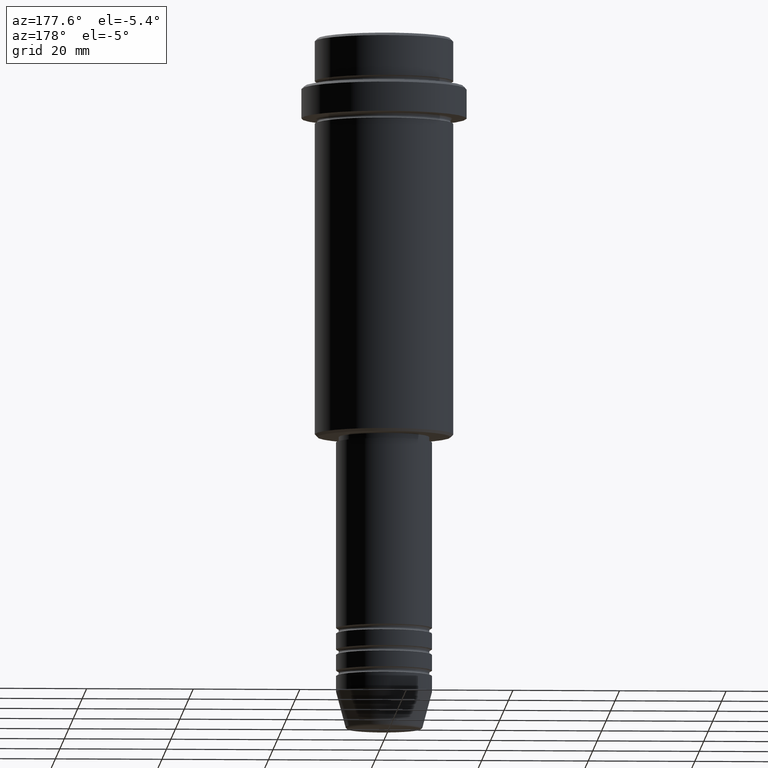
[diagram: clean part render]
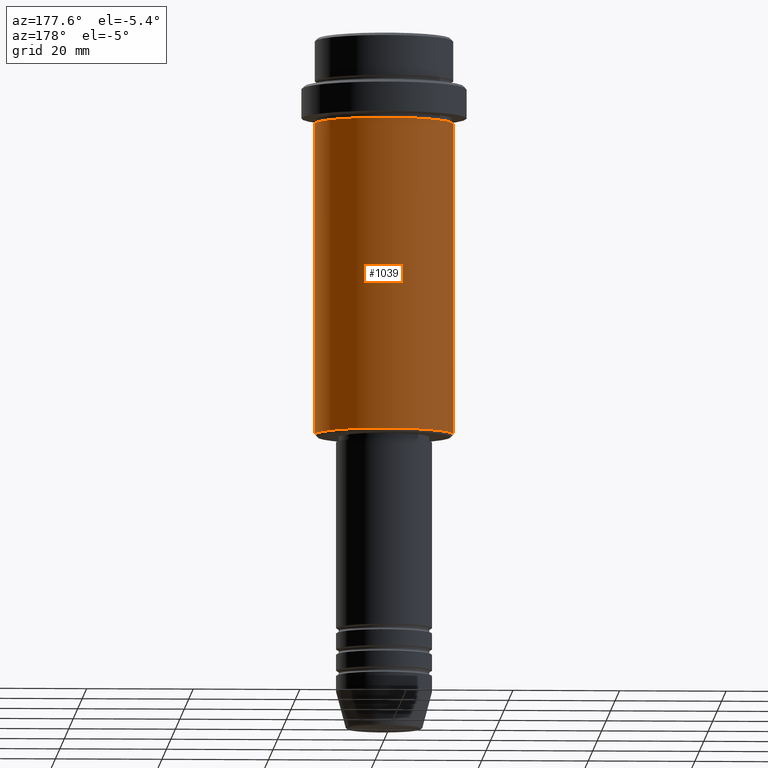
[diagram: same view with one face highlighted and labeled with its STEP entity id]
A machine part, auxiliary view. The second image highlights one B-rep face of the part: STEP entity #1039.
In plain terms, the highlighted cylindrical surface (partial cylindrical patch) has radius 13 mm, axis along (-0, -0, 1).
Its self-contained STEP definition (entity closure, byte-faithful):
#90 = CARTESIAN_POINT ( 'NONE',  ( 13.00000000000000000, 0.000000000000000000, 0.000000000000000000 ) ) ;
#123 = CARTESIAN_POINT ( 'NONE',  ( 0.000000000000000000, 0.000000000000000000, -74.50000000000002842 ) ) ;
#185 = LINE ( 'NONE', #605, #448 ) ;
#199 = EDGE_CURVE ( 'NONE', #1411, #249, #769, .T. ) ;
#200 = ORIENTED_EDGE ( 'NONE', *, *, #1170, .F. ) ;
#249 = VERTEX_POINT ( 'NONE', #341 ) ;
#261 = CIRCLE ( 'NONE', #1110, 13.00000000000000000 ) ;
#337 = FACE_OUTER_BOUND ( 'NONE', #486, .T. ) ;
#341 = CARTESIAN_POINT ( 'NONE',  ( -13.00000000000000000, 1.592040838891559095E-15, -74.50000000000002842 ) ) ;
#345 = DIRECTION ( 'NONE',  ( 1.000000000000000000, 0.000000000000000000, 0.000000000000000000 ) ) ;
#354 = DIRECTION ( 'NONE',  ( -0.000000000000000000, -0.000000000000000000, 1.000000000000000000 ) ) ;
#359 = VECTOR ( 'NONE', #1173, 1000.000000000000000 ) ;
#445 = EDGE_CURVE ( 'NONE', #1411, #934, #516, .T. ) ;
#448 = VECTOR ( 'NONE', #1160, 1000.000000000000000 ) ;
#465 = ORIENTED_EDGE ( 'NONE', *, *, #498, .T. ) ;
#486 = EDGE_LOOP ( 'NONE', ( #567, #465, #200, #640 ) ) ;
#492 = CARTESIAN_POINT ( 'NONE',  ( 13.00000000000000000, 0.000000000000000000, -16.00000000000000000 ) ) ;
#498 = EDGE_CURVE ( 'NONE', #249, #853, #185, .T. ) ;
#516 = LINE ( 'NONE', #90, #359 ) ;
#567 = ORIENTED_EDGE ( 'NONE', *, *, #199, .T. ) ;
#605 = CARTESIAN_POINT ( 'NONE',  ( -13.00000000000000000, 1.592040838891559095E-15, 0.000000000000000000 ) ) ;
#640 = ORIENTED_EDGE ( 'NONE', *, *, #445, .F. ) ;
#645 = CYLINDRICAL_SURFACE ( 'NONE', #809, 13.00000000000000000 ) ;
#769 = CIRCLE ( 'NONE', #1232, 13.00000000000000000 ) ;
#809 = AXIS2_PLACEMENT_3D ( 'NONE', #987, #1216, #1089 ) ;
#827 = CARTESIAN_POINT ( 'NONE',  ( -13.00000000000000000, 1.592040838891559095E-15, -16.00000000000000000 ) ) ;
#853 = VERTEX_POINT ( 'NONE', #827 ) ;
#891 = CARTESIAN_POINT ( 'NONE',  ( 0.000000000000000000, 0.000000000000000000, -16.00000000000000000 ) ) ;
#934 = VERTEX_POINT ( 'NONE', #492 ) ;
#987 = CARTESIAN_POINT ( 'NONE',  ( 0.000000000000000000, 0.000000000000000000, 0.000000000000000000 ) ) ;
#1001 = DIRECTION ( 'NONE',  ( -1.000000000000000000, 0.000000000000000000, 0.000000000000000000 ) ) ;
#1039 = ADVANCED_FACE ( 'NONE', ( #337 ), #645, .T. ) ;
#1089 = DIRECTION ( 'NONE',  ( 1.000000000000000000, 0.000000000000000000, 0.000000000000000000 ) ) ;
#1102 = DIRECTION ( 'NONE',  ( -0.000000000000000000, -0.000000000000000000, 1.000000000000000000 ) ) ;
#1110 = AXIS2_PLACEMENT_3D ( 'NONE', #891, #354, #345 ) ;
#1160 = DIRECTION ( 'NONE',  ( -0.000000000000000000, -0.000000000000000000, 1.000000000000000000 ) ) ;
#1170 = EDGE_CURVE ( 'NONE', #934, #853, #261, .T. ) ;
#1173 = DIRECTION ( 'NONE',  ( -0.000000000000000000, -0.000000000000000000, 1.000000000000000000 ) ) ;
#1216 = DIRECTION ( 'NONE',  ( -0.000000000000000000, -0.000000000000000000, 1.000000000000000000 ) ) ;
#1232 = AXIS2_PLACEMENT_3D ( 'NONE', #123, #1102, #1001 ) ;
#1278 = CARTESIAN_POINT ( 'NONE',  ( 13.00000000000000000, 0.000000000000000000, -74.50000000000002842 ) ) ;
#1411 = VERTEX_POINT ( 'NONE', #1278 ) ;